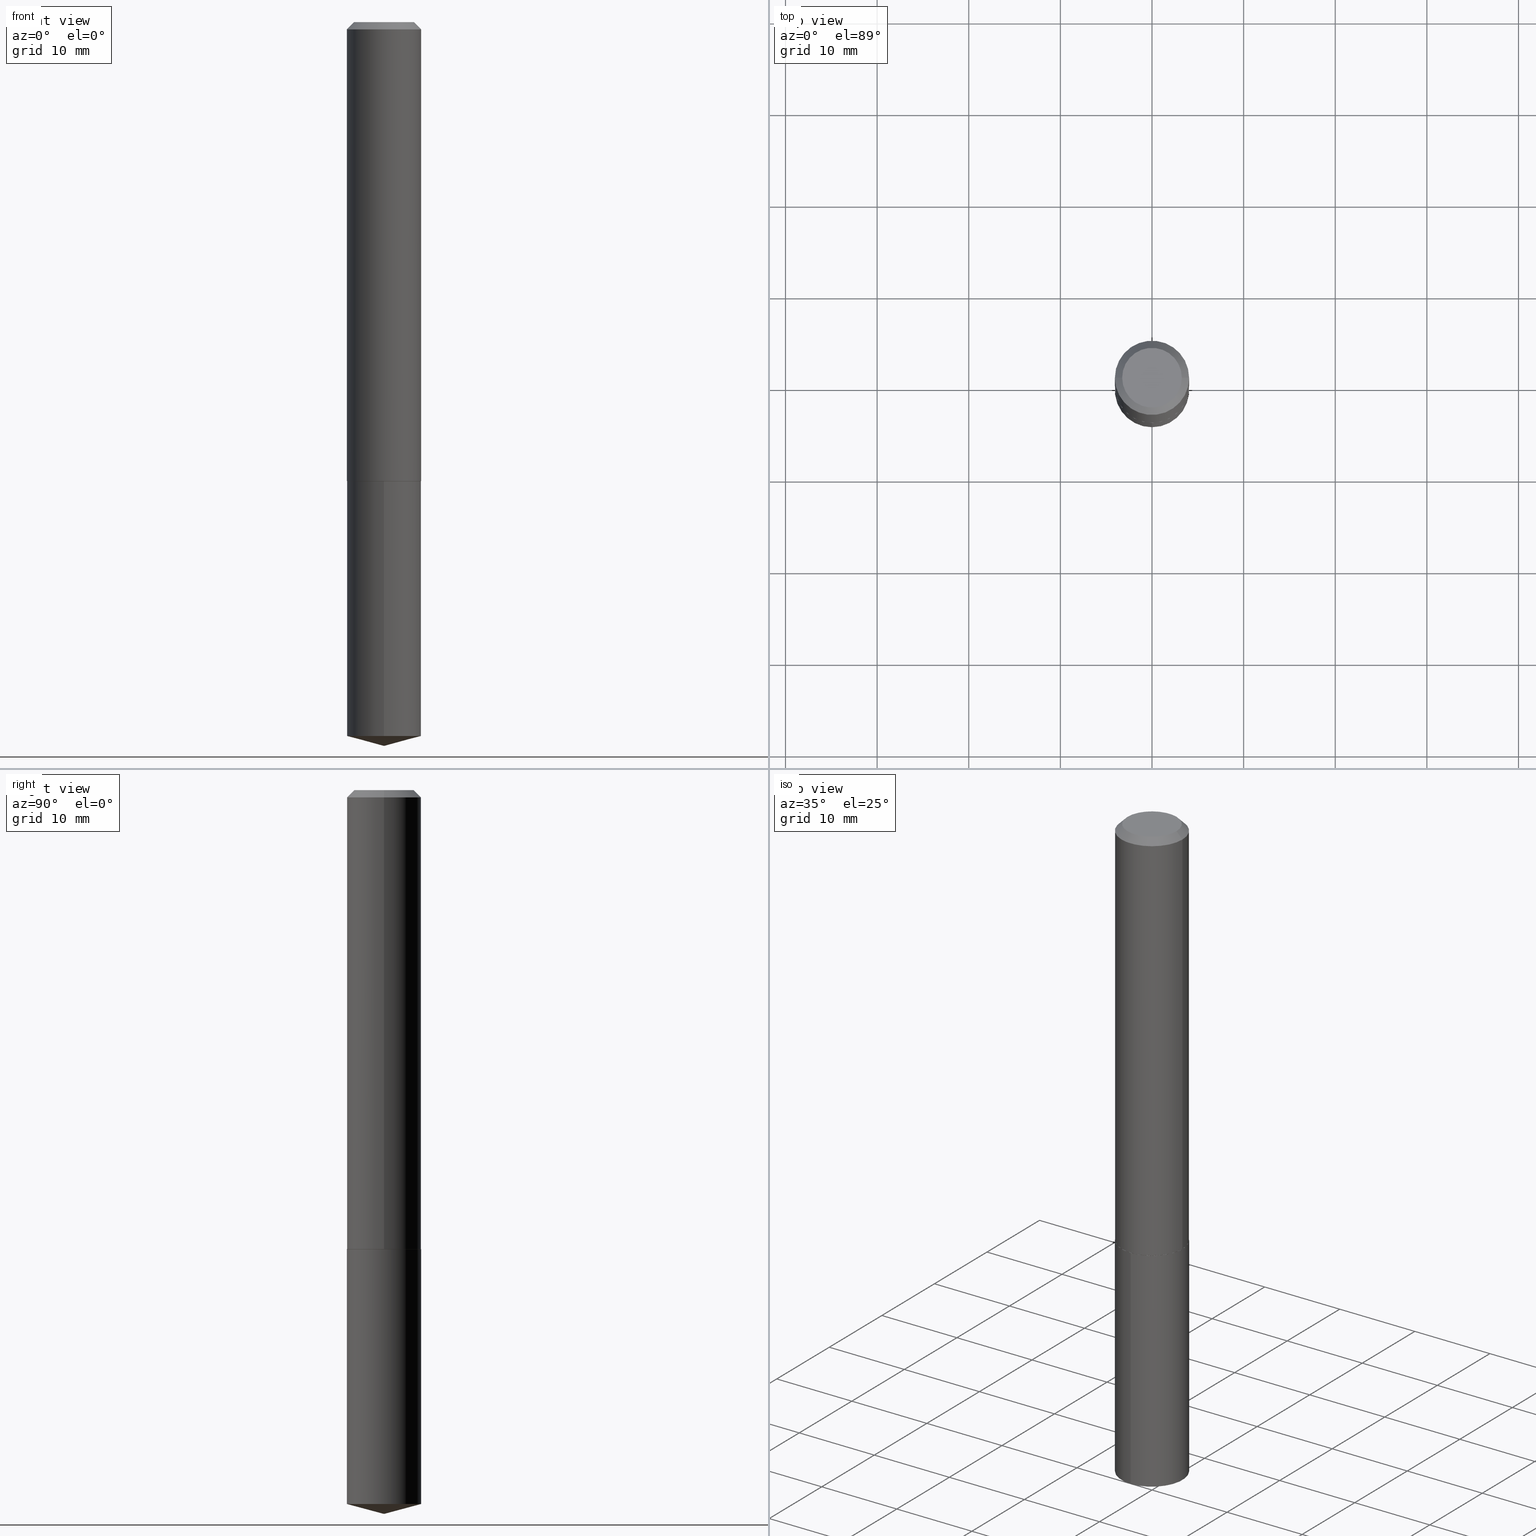
[diagram: canonical four-view strip — front | top / right | iso, engineering-drawing reading convention]
A machine part, canonical four-view strip (front | top / right | iso — engineering-drawing reading convention). The complete STEP part file that produces these views, byte-faithful:
ISO-10303-21;
HEADER;
FILE_DESCRIPTION (( 'STEP AP203' ),
    '1' );
FILE_NAME ('69016.STEP',
    '2024-04-23T14:21:04',
    ( '' ),
    ( '' ),
    'SwSTEP 2.0',
    'SolidWorks 2023',
    '' );
FILE_SCHEMA (( 'CONFIG_CONTROL_DESIGN' ));
ENDSEC;

DATA;
#1 = CYLINDRICAL_SURFACE ( 'NONE', #389, 0.1594500000000000361 ) ;
#2 = DIRECTION ( 'NONE',  ( 0.000000000000000000, 0.000000000000000000, 1.000000000000000000 ) ) ;
#3 = CC_DESIGN_PERSON_AND_ORGANIZATION_ASSIGNMENT ( #263, #243, ( #59 ) ) ;
#4 = CARTESIAN_POINT ( 'NONE',  ( -0.1589500000000003688, -5.754540887069427157E-15, -1.972399999999999931 ) ) ;
#5 = CC_DESIGN_PERSON_AND_ORGANIZATION_ASSIGNMENT ( #360, #209, ( #364 ) ) ;
#6 = DIRECTION ( 'NONE',  ( -2.445414738655623976E-29, 3.491558766622740629E-15, 1.000000000000000000 ) ) ;
#7 = CC_DESIGN_SECURITY_CLASSIFICATION ( #226, ( #364 ) ) ;
#8 = CONICAL_SURFACE ( 'NONE', #246, 0.1594500000000000361, 0.7853981633974450594 ) ;
#9 = DIRECTION ( 'NONE',  ( 2.445468806185136597E-29, -3.491481338843145583E-15, -1.000000000000000000 ) ) ;
#10 = EDGE_CURVE ( 'NONE', #47, #109, #70, .T. ) ;
#11 = CARTESIAN_POINT ( 'NONE',  ( -0.1282000000000000084, 9.497702111988029376E-16, 2.388061258272874228E-19 ) ) ;
#12 = EDGE_CURVE ( 'NONE', #297, #117, #171, .T. ) ;
#13 = DIRECTION ( 'NONE',  ( -2.445414738655623695E-29, 3.491558766622740629E-15, 1.000000000000000000 ) ) ;
#14 = APPROVAL ( #15, 'UNSPECIFIED' ) ;
#15 = APPROVAL_STATUS ( 'not_yet_approved' ) ;
#16 = EDGE_CURVE ( 'NONE', #23, #26, #50, .T. ) ;
#17 = AXIS2_PLACEMENT_3D ( 'NONE', #375, #234, #79 ) ;
#18 = LOCAL_TIME ( 10, 21, 4.000000000000000000, #340 ) ;
#19 = DIRECTION ( 'NONE',  ( -2.445468806185136597E-29, 3.491481338843145583E-15, 1.000000000000000000 ) ) ;
#20 = FACE_OUTER_BOUND ( 'NONE', #264, .T. ) ;
#21 = EDGE_CURVE ( 'NONE', #232, #148, #194, .T. ) ;
#22 = DIRECTION ( 'NONE',  ( -6.982962677686265133E-15, -1.000000000000000000, 3.426588891394496771E-15 ) ) ;
#23 = VERTEX_POINT ( 'NONE', #305 ) ;
#24 = CARTESIAN_POINT ( 'NONE',  ( 4.822219938916470979E-29, -6.884852052064798720E-15, -1.971899999999999986 ) ) ;
#25 = EDGE_CURVE ( 'NONE', #80, #200, #130, .T. ) ;
#26 = VERTEX_POINT ( 'NONE', #4 ) ;
#27 = ORIENTED_EDGE ( 'NONE', *, *, #91, .T. ) ;
#28 = PRODUCT_DEFINITION ( 'UNKNOWN', '', #364, #193 ) ;
#29 =( LENGTH_UNIT ( ) NAMED_UNIT ( * ) SI_UNIT ( $, .METRE. ) );
#30 = ORIENTED_EDGE ( 'NONE', *, *, #218, .T. ) ;
#31 = ORIENTED_EDGE ( 'NONE', *, *, #296, .T. ) ;
#32 = DATE_AND_TIME ( #150, #129 ) ;
#33 = DIRECTION ( 'NONE',  ( -6.982962677686265133E-15, -1.000000000000000000, 3.426588891394496771E-15 ) ) ;
#34 = FACE_OUTER_BOUND ( 'NONE', #121, .T. ) ;
#35 = DIRECTION ( 'NONE',  ( -0.7071067811865474617, 7.493145998870352582E-15, 0.7071067811865474617 ) ) ;
#36 = CC_DESIGN_APPROVAL ( #14, ( #226 ) ) ;
#37 = AXIS2_PLACEMENT_3D ( 'NONE', #154, #271, #95 ) ;
#38 = CARTESIAN_POINT ( 'NONE',  ( -0.1594500000000002582, -5.751891659895316745E-15, -1.971899999999999986 ) ) ;
#39 = DIRECTION ( 'NONE',  ( -2.445468806185136597E-29, 3.491481338843145583E-15, 1.000000000000000000 ) ) ;
#40 = PERSON_AND_ORGANIZATION ( #65, #111 ) ;
#41 = FACE_OUTER_BOUND ( 'NONE', #82, .T. ) ;
#42 = CC_DESIGN_APPROVAL ( #383, ( #28 ) ) ;
#43 = PLANE ( 'NONE',  #17 ) ;
#44 = ORIENTED_EDGE ( 'NONE', *, *, #107, .T. ) ;
#45 = AXIS2_PLACEMENT_3D ( 'NONE', #228, #101, #46 ) ;
#46 = DIRECTION ( 'NONE',  ( -6.982962677686266711E-15, -1.000000000000000000, 3.510303681827621500E-15 ) ) ;
#47 = VERTEX_POINT ( 'NONE', #11 ) ;
#48 = CYLINDRICAL_SURFACE ( 'NONE', #98, 0.1594500000000000361 ) ;
#49 = EDGE_LOOP ( 'NONE', ( #384, #238 ) ) ;
#50 = CIRCLE ( 'NONE', #276, 0.1589500000000003688 ) ;
#51 = AXIS2_PLACEMENT_3D ( 'NONE', #380, #164, #261 ) ;
#52 = VERTEX_POINT ( 'NONE', #38 ) ;
#53 = APPROVAL_STATUS ( 'not_yet_approved' ) ;
#54 = ORIENTED_EDGE ( 'NONE', *, *, #100, .T. ) ;
#55 = ORIENTED_EDGE ( 'NONE', *, *, #227, .F. ) ;
#56 = ADVANCED_FACE ( 'NONE', ( #64 ), #1, .T. ) ;
#57 = COORDINATED_UNIVERSAL_TIME_OFFSET ( 5, 0, .BEHIND. ) ;
#58 = CARTESIAN_POINT ( 'NONE',  ( 0.1594500000000001194, -1.113433398957076194E-15, 7.775063869006624280E-30 ) ) ;
#59 = PRODUCT ( '69016', '69016', '', ( #265 ) ) ;
#60 = FACE_OUTER_BOUND ( 'NONE', #326, .T. ) ;
#61 = LINE ( 'NONE', #89, #134 ) ;
#62 = CARTESIAN_POINT ( 'NONE',  ( -5.839929314523303030E-48, 8.337871319499265500E-34, 2.388061258337386622E-19 ) ) ;
#63 = AXIS2_PLACEMENT_3D ( 'NONE', #110, #280, #201 ) ;
#64 = FACE_OUTER_BOUND ( 'NONE', #84, .T. ) ;
#65 = PERSON ( 'UNSPECIFIED', 'UNSPECIFIED', 'UNSPECIFIED', ('UNSPECIFIED'), ('UNSPECIFIED'), ('UNSPECIFIED') ) ;
#66 = FACE_OUTER_BOUND ( 'NONE', #175, .T. ) ;
#67 = EDGE_CURVE ( 'NONE', #148, #117, #215, .T. ) ;
#68 = APPLICATION_CONTEXT ( 'configuration controlled 3d designs of mechanical parts and assemblies' ) ;
#69 = PLANE ( 'NONE',  #63 ) ;
#70 = CIRCLE ( 'NONE', #90, 0.1282000000000000084 ) ;
#71 = AXIS2_PLACEMENT_3D ( 'NONE', #140, #167, #382 ) ;
#72 = EDGE_LOOP ( 'NONE', ( #266, #173, #236 ) ) ;
#73 = EDGE_CURVE ( 'NONE', #26, #52, #248, .T. ) ;
#74 = AXIS2_PLACEMENT_3D ( 'NONE', #242, #132, #96 ) ;
#75 = DIRECTION ( 'NONE',  ( -2.445414738655623695E-29, 3.491558766622740629E-15, 1.000000000000000000 ) ) ;
#76 = CONICAL_SURFACE ( 'NONE', #269, 0.1594500000000002582, 0.7853981633974482790 ) ;
#77 = ORIENTED_EDGE ( 'NONE', *, *, #367, .F. ) ;
#78 = EDGE_CURVE ( 'NONE', #109, #47, #267, .T. ) ;
#79 = DIRECTION ( 'NONE',  ( 1.000000000000000000, -6.982962677686265922E-15, 4.876176775795935793E-29 ) ) ;
#80 = VERTEX_POINT ( 'NONE', #368 ) ;
#81 = CARTESIAN_POINT ( 'NONE',  ( 4.823442673319563780E-29, -6.886597792734220224E-15, -1.972399999999999931 ) ) ;
#82 = EDGE_LOOP ( 'NONE', ( #290, #229 ) ) ;
#83 = CIRCLE ( 'NONE', #51, 0.1594500000000000361 ) ;
#84 = EDGE_LOOP ( 'NONE', ( #112, #355, #138, #85 ) ) ;
#85 = ORIENTED_EDGE ( 'NONE', *, *, #218, .F. ) ;
#86 = PERSON_AND_ORGANIZATION_ROLE ( 'creator' ) ;
#87 = DIRECTION ( 'NONE',  ( 1.000000000000000000, -6.982962677686267499E-15, 4.876176775795935232E-29 ) ) ;
#88 = LENGTH_MEASURE_WITH_UNIT ( LENGTH_MEASURE( 0.02539999999999999897 ), #29 );
#89 = CARTESIAN_POINT ( 'NONE',  ( -0.1594500000000000361, 1.004324607118226502E-15, -0.03125000000000021511 ) ) ;
#90 = AXIS2_PLACEMENT_3D ( 'NONE', #324, #39, #311 ) ;
#91 = EDGE_CURVE ( 'NONE', #80, #52, #97, .T. ) ;
#92 =( NAMED_UNIT ( * ) PLANE_ANGLE_UNIT ( ) SI_UNIT ( $, .RADIAN. ) );
#93 = CARTESIAN_POINT ( 'NONE',  ( 0.000000000000000000, 0.000000000000000000, 0.000000000000000000 ) ) ;
#94 = PERSON_AND_ORGANIZATION_ROLE ( 'classification_officer' ) ;
#95 = DIRECTION ( 'NONE',  ( -6.982962677686265133E-15, -1.000000000000000000, 3.426588891394496771E-15 ) ) ;
#96 = DIRECTION ( 'NONE',  ( -6.982962677686265133E-15, -1.000000000000000000, 3.426588891394496771E-15 ) ) ;
#97 = CIRCLE ( 'NONE', #318, 0.1594500000000002582 ) ;
#98 = AXIS2_PLACEMENT_3D ( 'NONE', #160, #13, #320 ) ;
#99 = APPROVAL_DATE_TIME ( #163, #14 ) ;
#100 = EDGE_CURVE ( 'NONE', #148, #232, #371, .T. ) ;
#101 = DIRECTION ( 'NONE',  ( -2.445414738655623695E-29, 3.491558766622740629E-15, 1.000000000000000000 ) ) ;
#102 = DATE_TIME_ROLE ( 'classification_date' ) ;
#103 = CARTESIAN_POINT ( 'NONE',  ( 1.132960392169554156E-15, 0.1594499999999892392, -3.067475501266858195 ) ) ;
#104 = EDGE_CURVE ( 'NONE', #23, #80, #187, .T. ) ;
#105 = CIRCLE ( 'NONE', #166, 0.1594500000000000361 ) ;
#106 = ORIENTED_EDGE ( 'NONE', *, *, #233, .T. ) ;
#107 = EDGE_CURVE ( 'NONE', #47, #328, #61, .T. ) ;
#108 = CARTESIAN_POINT ( 'NONE',  ( 7.605944076020007762E-29, -1.085914063884510198E-14, -3.110199999999999854 ) ) ;
#109 = VERTEX_POINT ( 'NONE', #185 ) ;
#110 = CARTESIAN_POINT ( 'NONE',  ( -2.919964657261651515E-48, 4.168935659749632750E-34, 1.194030629168693311E-19 ) ) ;
#111 = ORGANIZATION ( 'UNSPECIFIED', 'UNSPECIFIED', '' ) ;
#112 = ORIENTED_EDGE ( 'NONE', *, *, #21, .T. ) ;
#113 = LINE ( 'NONE', #352, #120 ) ;
#114 = ORIENTED_EDGE ( 'NONE', *, *, #25, .T. ) ;
#115 = ADVANCED_FACE ( 'NONE', ( #34 ), #217, .T. ) ;
#116 = APPROVAL_DATE_TIME ( #385, #383 ) ;
#117 = VERTEX_POINT ( 'NONE', #336 ) ;
#118 = DIRECTION ( 'NONE',  ( -6.745023994389839133E-15, -0.9659258262890676461, 0.2588190451025227934 ) ) ;
#119 = VECTOR ( 'NONE', #35, 39.37007874015748854 ) ;
#120 = VECTOR ( 'NONE', #133, 39.37007874015748143 ) ;
#121 = EDGE_LOOP ( 'NONE', ( #27, #299, #198, #152 ) ) ;
#122 = CARTESIAN_POINT ( 'NONE',  ( -0.1594500000000002582, -5.751891659895316745E-15, -1.971899999999999986 ) ) ;
#123 = APPLICATION_PROTOCOL_DEFINITION ( 'international standard', 'config_control_design', 1994, #68 ) ;
#124 = ADVANCED_FACE ( 'NONE', ( #60 ), #204, .T. ) ;
#125 = DIRECTION ( 'NONE',  ( -2.445414738655623695E-29, 3.491558766622740629E-15, 1.000000000000000000 ) ) ;
#126 = APPROVAL_ROLE ( '' ) ;
#127 = LOCAL_TIME ( 10, 21, 4.000000000000000000, #131 ) ;
#128 = CARTESIAN_POINT ( 'NONE',  ( 0.000000000000000000, 0.000000000000000000, 0.000000000000000000 ) ) ;
#129 = LOCAL_TIME ( 10, 21, 4.000000000000000000, #177 ) ;
#130 = LINE ( 'NONE', #58, #327 ) ;
#131 = COORDINATED_UNIVERSAL_TIME_OFFSET ( 5, 0, .BEHIND. ) ;
#132 = DIRECTION ( 'NONE',  ( -2.445414738655623695E-29, 3.491558766622740629E-15, 1.000000000000000000 ) ) ;
#133 = DIRECTION ( 'NONE',  ( 0.7071067811865452413, -7.319954787623248157E-15, -0.7071067811865497932 ) ) ;
#134 = VECTOR ( 'NONE', #361, 39.37007874015748143 ) ;
#135 = CONICAL_SURFACE ( 'NONE', #191, 146.9311341562558084, 1.308996938995748538 ) ;
#136 = DIRECTION ( 'NONE',  ( 6.982962677686265922E-15, 1.000000000000000000, -3.491558766622740629E-15 ) ) ;
#137 = CARTESIAN_POINT ( 'NONE',  ( -0.1594500000000000361, -2.364020029782342724E-15, -0.03125000000000021511 ) ) ;
#138 = ORIENTED_EDGE ( 'NONE', *, *, #12, .F. ) ;
#139 = ADVANCED_FACE ( 'NONE', ( #184 ), #366, .T. ) ;
#140 = CARTESIAN_POINT ( 'NONE',  ( 7.642090019328603538E-31, -1.091087918388490390E-16, -0.03125000000000021511 ) ) ;
#141 = ORIENTED_EDGE ( 'NONE', *, *, #91, .F. ) ;
#142 = CARTESIAN_POINT ( 'NONE',  ( 0.1594500000000000361, -1.222542190795924506E-15, -0.03125000000000021511 ) ) ;
#143 = AXIS2_PLACEMENT_3D ( 'NONE', #157, #339, #247 ) ;
#144 = ADVANCED_FACE ( 'NONE', ( #278 ), #8, .T. ) ;
#145 = ORIENTED_EDGE ( 'NONE', *, *, #309, .T. ) ;
#146 = EDGE_LOOP ( 'NONE', ( #330, #54, #30, #386 ) ) ;
#147 = CARTESIAN_POINT ( 'NONE',  ( 0.000000000000000000, 0.000000000000000000, 0.000000000000000000 ) ) ;
#148 = VERTEX_POINT ( 'NONE', #103 ) ;
#149 = EDGE_CURVE ( 'NONE', #52, #80, #286, .T. ) ;
#150 = CALENDAR_DATE ( 2024, 23, 4 ) ;
#151 = AXIS2_PLACEMENT_3D ( 'NONE', #190, #19, #254 ) ;
#152 = ORIENTED_EDGE ( 'NONE', *, *, #25, .F. ) ;
#153 = CARTESIAN_POINT ( 'NONE',  ( -8.867033525025160767E-28, 1.266036502104268642E-13, 36.25987874015748247 ) ) ;
#154 = CARTESIAN_POINT ( 'NONE',  ( 7.501356444058232393E-29, -1.071011825929630935E-14, -3.067475501266857751 ) ) ;
#155 = DIRECTION ( 'NONE',  ( -6.982962677686266711E-15, -1.000000000000000000, 3.510303681827621500E-15 ) ) ;
#156 = CARTESIAN_POINT ( 'NONE',  ( 4.823442673319563780E-29, -6.886597792734220224E-15, -1.972399999999999931 ) ) ;
#157 = CARTESIAN_POINT ( 'NONE',  ( 7.642090019328603538E-31, -1.091087918388490390E-16, -0.03125000000000021511 ) ) ;
#158 = DIRECTION ( 'NONE',  ( -2.445468806185136597E-29, 3.491481338843145583E-15, 1.000000000000000000 ) ) ;
#159 = CALENDAR_DATE ( 2024, 23, 4 ) ;
#160 = CARTESIAN_POINT ( 'NONE',  ( 4.823442673319563780E-29, -6.886597792734220224E-15, -1.972399999999999931 ) ) ;
#161 = CALENDAR_DATE ( 2024, 23, 4 ) ;
#162 = DIRECTION ( 'NONE',  ( -2.445468806185136597E-29, 3.491481338843145583E-15, 1.000000000000000000 ) ) ;
#163 = DATE_AND_TIME ( #161, #127 ) ;
#164 = DIRECTION ( 'NONE',  ( -2.445468806185136597E-29, 3.491481338843145583E-15, 1.000000000000000000 ) ) ;
#165 = CLOSED_SHELL ( 'NONE', ( #56, #331, #188, #176, #277 ) ) ;
#166 = AXIS2_PLACEMENT_3D ( 'NONE', #81, #75, #22 ) ;
#167 = DIRECTION ( 'NONE',  ( -2.445468806185136597E-29, 3.491481338843145583E-15, 1.000000000000000000 ) ) ;
#168 = ORIENTED_EDGE ( 'NONE', *, *, #149, .F. ) ;
#169 = FACE_OUTER_BOUND ( 'NONE', #49, .T. ) ;
#170 = ORIENTED_EDGE ( 'NONE', *, *, #287, .T. ) ;
#171 = CIRCLE ( 'NONE', #225, 0.1594500000000000361 ) ;
#172 = LINE ( 'NONE', #329, #230 ) ;
#173 = ORIENTED_EDGE ( 'NONE', *, *, #227, .T. ) ;
#174 = APPROVAL_ROLE ( '' ) ;
#175 = EDGE_LOOP ( 'NONE', ( #357, #379, #359, #168 ) ) ;
#176 = ADVANCED_FACE ( 'NONE', ( #378 ), #48, .T. ) ;
#177 = COORDINATED_UNIVERSAL_TIME_OFFSET ( 5, 0, .BEHIND. ) ;
#178 = EDGE_LOOP ( 'NONE', ( #77, #205, #114, #301 ) ) ;
#179 = PERSON_AND_ORGANIZATION ( #65, #111 ) ;
#180 = VECTOR ( 'NONE', #363, 39.37007874015748854 ) ;
#181 = CONICAL_SURFACE ( 'NONE', #45, 146.9311341562558084, 1.308996938995748538 ) ;
#182 = CARTESIAN_POINT ( 'NONE',  ( 4.823442673319563780E-29, -6.886597792734220224E-15, -1.972399999999999931 ) ) ;
#183 = DIRECTION ( 'NONE',  ( -2.445414738655623695E-29, 3.491558766622740629E-15, 1.000000000000000000 ) ) ;
#184 = FACE_OUTER_BOUND ( 'NONE', #178, .T. ) ;
#185 = CARTESIAN_POINT ( 'NONE',  ( 0.1282000000000000084, -1.041265520448915177E-15, 2.388061258405092689E-19 ) ) ;
#186 = CARTESIAN_POINT ( 'NONE',  ( 7.642090019328603538E-31, -1.091087918388490390E-16, -0.03125000000000021511 ) ) ;
#187 = LINE ( 'NONE', #244, #180 ) ;
#188 = ADVANCED_FACE ( 'NONE', ( #20 ), #181, .T. ) ;
#189 = DIRECTION ( 'NONE',  ( 1.000000000000000000, -6.982962677686267499E-15, 0.000000000000000000 ) ) ;
#190 = CARTESIAN_POINT ( 'NONE',  ( 4.822219938916470979E-29, -6.884852052064798720E-15, -1.971899999999999986 ) ) ;
#191 = AXIS2_PLACEMENT_3D ( 'NONE', #153, #183, #155 ) ;
#192 = EDGE_LOOP ( 'NONE', ( #208, #381, #141, #292 ) ) ;
#193 = DESIGN_CONTEXT ( 'detailed design', #68, 'design' ) ;
#194 = CIRCLE ( 'NONE', #37, 0.1594500000000000361 ) ;
#195 = VECTOR ( 'NONE', #118, 39.37007874015748854 ) ;
#196 = AXIS2_PLACEMENT_3D ( 'NONE', #128, #213, #87 ) ;
#197 = DIRECTION ( 'NONE',  ( -2.445468806185136597E-29, 3.491481338843145583E-15, 1.000000000000000000 ) ) ;
#198 = ORIENTED_EDGE ( 'NONE', *, *, #296, .F. ) ;
#199 = LINE ( 'NONE', #354, #284 ) ;
#200 = VERTEX_POINT ( 'NONE', #142 ) ;
#201 = DIRECTION ( 'NONE',  ( -1.000000000000000000, 6.982962677686265922E-15, -4.876176775795935793E-29 ) ) ;
#202 = VERTEX_POINT ( 'NONE', #312 ) ;
#203 = PERSON_AND_ORGANIZATION ( #65, #111 ) ;
#204 = CONICAL_SURFACE ( 'NONE', #143, 0.1594500000000000361, 0.7853981633974450594 ) ;
#205 = ORIENTED_EDGE ( 'NONE', *, *, #149, .T. ) ;
#206 = DIRECTION ( 'NONE',  ( 1.000000000000000000, 0.000000000000000000, 0.000000000000000000 ) ) ;
#207 = ADVANCED_FACE ( 'NONE', ( #169 ), #43, .F. ) ;
#208 = ORIENTED_EDGE ( 'NONE', *, *, #16, .T. ) ;
#209 = PERSON_AND_ORGANIZATION_ROLE ( 'creator' ) ;
#210 = DIRECTION ( 'NONE',  ( -6.982962677686265133E-15, -1.000000000000000000, 3.426588891394496771E-15 ) ) ;
#211 = COORDINATED_UNIVERSAL_TIME_OFFSET ( 5, 0, .BEHIND. ) ;
#212 = APPROVAL_PERSON_ORGANIZATION ( #298, #383, #126 ) ;
#213 = DIRECTION ( 'NONE',  ( -2.445468806185136597E-29, 3.491481338843145583E-15, 1.000000000000000000 ) ) ;
#214 = CARTESIAN_POINT ( 'NONE',  ( 7.605728920166720799E-29, -1.085944607595005053E-14, -3.110199999999999854 ) ) ;
#215 = LINE ( 'NONE', #370, #220 ) ;
#216 = MANIFOLD_SOLID_BREP ( 'Body-Move/Copy2[1]', #165 ) ;
#217 = CYLINDRICAL_SURFACE ( 'NONE', #196, 0.1594500000000001194 ) ;
#218 = EDGE_CURVE ( 'NONE', #232, #297, #199, .T. ) ;
#219 = DIRECTION ( 'NONE',  ( -2.445468806185136597E-29, 3.491481338843145583E-15, 1.000000000000000000 ) ) ;
#220 = VECTOR ( 'NONE', #6, 39.37007874015748143 ) ;
#221 = APPROVAL ( #53, 'UNSPECIFIED' ) ;
#222 = FACE_OUTER_BOUND ( 'NONE', #192, .T. ) ;
#223 = MANIFOLD_SOLID_BREP ( 'Body-Move/Copy2[2]', #251 ) ;
#224 = CARTESIAN_POINT ( 'NONE',  ( 4.822219938916470979E-29, -6.884852052064798720E-15, -1.971899999999999986 ) ) ;
#225 = AXIS2_PLACEMENT_3D ( 'NONE', #156, #274, #33 ) ;
#226 = SECURITY_CLASSIFICATION ( '', '', #362 ) ;
#227 = EDGE_CURVE ( 'NONE', #202, #148, #231, .T. ) ;
#228 = CARTESIAN_POINT ( 'NONE',  ( -8.867033525025160767E-28, 1.266036502104268642E-13, 36.25987874015748247 ) ) ;
#229 = ORIENTED_EDGE ( 'NONE', *, *, #78, .T. ) ;
#230 = VECTOR ( 'NONE', #365, 39.37007874015748143 ) ;
#231 = LINE ( 'NONE', #108, #255 ) ;
#232 = VERTEX_POINT ( 'NONE', #289 ) ;
#233 = EDGE_CURVE ( 'NONE', #328, #200, #83, .T. ) ;
#234 = DIRECTION ( 'NONE',  ( -2.438088387897960049E-29, 3.491481338843145188E-15, 1.000000000000000000 ) ) ;
#235 = CC_DESIGN_DATE_AND_TIME_ASSIGNMENT ( #356, #239, ( #28 ) ) ;
#236 = ORIENTED_EDGE ( 'NONE', *, *, #21, .F. ) ;
#237 = CALENDAR_DATE ( 2024, 23, 4 ) ;
#238 = ORIENTED_EDGE ( 'NONE', *, *, #315, .F. ) ;
#239 = DATE_TIME_ROLE ( 'creation_date' ) ;
#240 = AXIS2_PLACEMENT_3D ( 'NONE', #93, #310, #307 ) ;
#241 = ORIENTED_EDGE ( 'NONE', *, *, #342, .T. ) ;
#242 = CARTESIAN_POINT ( 'NONE',  ( 7.501356444058232393E-29, -1.071011825929630935E-14, -3.067475501266857751 ) ) ;
#243 = PERSON_AND_ORGANIZATION_ROLE ( 'design_owner' ) ;
#244 = CARTESIAN_POINT ( 'NONE',  ( 0.1594500000000002582, -7.998285451021876295E-15, -1.971899999999999986 ) ) ;
#245 = CALENDAR_DATE ( 2024, 23, 4 ) ;
#246 = AXIS2_PLACEMENT_3D ( 'NONE', #186, #9, #259 ) ;
#247 = DIRECTION ( 'NONE',  ( -1.000000000000000000, 6.982962677686265922E-15, 0.000000000000000000 ) ) ;
#248 = LINE ( 'NONE', #122, #119 ) ;
#249 = CARTESIAN_POINT ( 'NONE',  ( 4.823442673319563780E-29, -6.886597792734220224E-15, -1.972399999999999931 ) ) ;
#250 = ADVANCED_FACE ( 'NONE', ( #41 ), #69, .F. ) ;
#251 = CLOSED_SHELL ( 'NONE', ( #124, #115, #258, #207, #288, #139, #144, #250 ) ) ;
#252 = CARTESIAN_POINT ( 'NONE',  ( 4.823442673319563780E-29, -6.886597792734220224E-15, -1.972399999999999931 ) ) ;
#253 =( GEOMETRIC_REPRESENTATION_CONTEXT ( 3 ) GLOBAL_UNCERTAINTY_ASSIGNED_CONTEXT ( ( #377 ) ) GLOBAL_UNIT_ASSIGNED_CONTEXT ( ( #332, #92, #295 ) ) REPRESENTATION_CONTEXT ( 'NONE', 'WORKASPACE' ) );
#254 = DIRECTION ( 'NONE',  ( 1.000000000000000000, -6.982962677686267499E-15, 0.000000000000000000 ) ) ;
#255 = VECTOR ( 'NONE', #346, 39.37007874015748143 ) ;
#256 = APPROVAL_PERSON_ORGANIZATION ( #281, #14, #308 ) ;
#257 = FACE_OUTER_BOUND ( 'NONE', #72, .T. ) ;
#258 = ADVANCED_FACE ( 'NONE', ( #222 ), #76, .T. ) ;
#259 = DIRECTION ( 'NONE',  ( -1.000000000000000000, 6.982962677686265922E-15, 0.000000000000000000 ) ) ;
#260 = ORIENTED_EDGE ( 'NONE', *, *, #107, .F. ) ;
#261 = DIRECTION ( 'NONE',  ( 1.000000000000000000, -6.982962677686265922E-15, 0.000000000000000000 ) ) ;
#262 = ORIENTED_EDGE ( 'NONE', *, *, #10, .F. ) ;
#263 = PERSON_AND_ORGANIZATION ( #65, #111 ) ;
#264 = EDGE_LOOP ( 'NONE', ( #55, #241, #351 ) ) ;
#265 = MECHANICAL_CONTEXT ( 'NONE', #282, 'mechanical' ) ;
#266 = ORIENTED_EDGE ( 'NONE', *, *, #342, .F. ) ;
#267 = CIRCLE ( 'NONE', #350, 0.1282000000000000084 ) ;
#268 = APPROVAL_DATE_TIME ( #32, #221 ) ;
#269 = AXIS2_PLACEMENT_3D ( 'NONE', #224, #162, #283 ) ;
#270 = DIRECTION ( 'NONE',  ( 1.000000000000000000, -6.982962677686265922E-15, 0.000000000000000000 ) ) ;
#271 = DIRECTION ( 'NONE',  ( -2.445414738655623695E-29, 3.491558766622740629E-15, 1.000000000000000000 ) ) ;
#272 = PRODUCT_RELATED_PRODUCT_CATEGORY ( 'detail', '', ( #59 ) ) ;
#273 = APPLICATION_PROTOCOL_DEFINITION ( 'international standard', 'config_control_design', 1994, #282 ) ;
#274 = DIRECTION ( 'NONE',  ( -2.445414738655623695E-29, 3.491558766622740629E-15, 1.000000000000000000 ) ) ;
#275 = DATE_AND_TIME ( #159, #18 ) ;
#276 = AXIS2_PLACEMENT_3D ( 'NONE', #249, #219, #270 ) ;
#277 = ADVANCED_FACE ( 'NONE', ( #291 ), #313, .F. ) ;
#278 = FACE_OUTER_BOUND ( 'NONE', #316, .T. ) ;
#279 = DIRECTION ( 'NONE',  ( 1.000000000000000000, -6.982962677686267499E-15, 4.876166643192836620E-29 ) ) ;
#280 = DIRECTION ( 'NONE',  ( 2.438088387897960049E-29, -3.491481338843145188E-15, -1.000000000000000000 ) ) ;
#281 = PERSON_AND_ORGANIZATION ( #65, #111 ) ;
#282 = APPLICATION_CONTEXT ( 'configuration controlled 3d designs of mechanical parts and assemblies' ) ;
#283 = DIRECTION ( 'NONE',  ( 1.000000000000000000, -6.982962677686267499E-15, 0.000000000000000000 ) ) ;
#284 = VECTOR ( 'NONE', #322, 39.37007874015748143 ) ;
#285 = DIRECTION ( 'NONE',  ( 1.000000000000000000, -6.982962677686265922E-15, 0.000000000000000000 ) ) ;
#286 = CIRCLE ( 'NONE', #372, 0.1594500000000002582 ) ;
#287 = EDGE_CURVE ( 'NONE', #117, #297, #105, .T. ) ;
#288 = ADVANCED_FACE ( 'NONE', ( #66 ), #302, .T. ) ;
#289 = CARTESIAN_POINT ( 'NONE',  ( -1.113433398956999872E-15, -0.1594500000000106665, -3.067475501266857307 ) ) ;
#290 = ORIENTED_EDGE ( 'NONE', *, *, #10, .T. ) ;
#291 = FACE_OUTER_BOUND ( 'NONE', #353, .T. ) ;
#292 = ORIENTED_EDGE ( 'NONE', *, *, #104, .F. ) ;
#293 = DIMENSIONAL_EXPONENTS ( 1.000000000000000000, 0.000000000000000000, 0.000000000000000000, 0.000000000000000000, 0.000000000000000000, 0.000000000000000000, 0.000000000000000000 ) ;
#294 = APPROVAL_PERSON_ORGANIZATION ( #203, #221, #174 ) ;
#295 =( NAMED_UNIT ( * ) SI_UNIT ( $, .STERADIAN. ) SOLID_ANGLE_UNIT ( ) );
#296 = EDGE_CURVE ( 'NONE', #200, #328, #358, .T. ) ;
#297 = VERTEX_POINT ( 'NONE', #325 ) ;
#298 = PERSON_AND_ORGANIZATION ( #65, #111 ) ;
#299 = ORIENTED_EDGE ( 'NONE', *, *, #367, .T. ) ;
#300 = LINE ( 'NONE', #214, #195 ) ;
#301 = ORIENTED_EDGE ( 'NONE', *, *, #233, .F. ) ;
#302 = CONICAL_SURFACE ( 'NONE', #151, 0.1594500000000002582, 0.7853981633974482790 ) ;
#303 = PERSON_AND_ORGANIZATION_ROLE ( 'design_supplier' ) ;
#304 = CARTESIAN_POINT ( 'NONE',  ( 4.822219938916470979E-29, -6.884852052064798720E-15, -1.971899999999999986 ) ) ;
#305 = CARTESIAN_POINT ( 'NONE',  ( 0.1589500000000003688, -7.996539710352454003E-15, -1.972399999999999931 ) ) ;
#306 = SHAPE_DEFINITION_REPRESENTATION ( #345, #323 ) ;
#307 = DIRECTION ( 'NONE',  ( 1.000000000000000000, -6.982962677686267499E-15, 4.876176775795935232E-29 ) ) ;
#308 = APPROVAL_ROLE ( '' ) ;
#309 = EDGE_CURVE ( 'NONE', #109, #200, #113, .T. ) ;
#310 = DIRECTION ( 'NONE',  ( -2.445468806185136597E-29, 3.491481338843145583E-15, 1.000000000000000000 ) ) ;
#311 = DIRECTION ( 'NONE',  ( 1.000000000000000000, -6.982962677686267499E-15, 4.876166643192836620E-29 ) ) ;
#312 = CARTESIAN_POINT ( 'NONE',  ( 7.605728920166721920E-29, -1.085944607595004737E-14, -3.110199999999999854 ) ) ;
#313 = PLANE ( 'NONE',  #319 ) ;
#314 = LOCAL_TIME ( 10, 21, 4.000000000000000000, #57 ) ;
#315 = EDGE_CURVE ( 'NONE', #26, #23, #390, .T. ) ;
#316 = EDGE_LOOP ( 'NONE', ( #376, #262, #44, #106 ) ) ;
#317 = CC_DESIGN_PERSON_AND_ORGANIZATION_ASSIGNMENT ( #40, #94, ( #226 ) ) ;
#318 = AXIS2_PLACEMENT_3D ( 'NONE', #304, #337, #333 ) ;
#319 = AXIS2_PLACEMENT_3D ( 'NONE', #349, #344, #136 ) ;
#320 = DIRECTION ( 'NONE',  ( -6.982962677686265133E-15, -1.000000000000000000, 3.426588891394496771E-15 ) ) ;
#321 = ORIENTED_EDGE ( 'NONE', *, *, #78, .F. ) ;
#322 = DIRECTION ( 'NONE',  ( -2.445414738655623976E-29, 3.491558766622740629E-15, 1.000000000000000000 ) ) ;
#323 = ADVANCED_BREP_SHAPE_REPRESENTATION ( '69016', ( #216, #223, #341 ), #253 ) ;
#324 = CARTESIAN_POINT ( 'NONE',  ( -5.839929314523303030E-48, 8.337871319499265500E-34, 2.388061258337386622E-19 ) ) ;
#325 = CARTESIAN_POINT ( 'NONE',  ( -1.113433398957026890E-15, -0.1594500000000069195, -1.972399999999999487 ) ) ;
#326 = EDGE_LOOP ( 'NONE', ( #321, #145, #31, #260 ) ) ;
#327 = VECTOR ( 'NONE', #343, 39.37007874015748143 ) ;
#328 = VERTEX_POINT ( 'NONE', #137 ) ;
#329 = CARTESIAN_POINT ( 'NONE',  ( -0.1594500000000001194, 1.132960392169480595E-15, -7.843242001411453542E-30 ) ) ;
#330 = ORIENTED_EDGE ( 'NONE', *, *, #67, .F. ) ;
#331 = ADVANCED_FACE ( 'NONE', ( #257 ), #135, .T. ) ;
#332 =( CONVERSION_BASED_UNIT ( 'INCH', #88 ) LENGTH_UNIT ( ) NAMED_UNIT ( #293 ) );
#333 = DIRECTION ( 'NONE',  ( 1.000000000000000000, -6.982962677686267499E-15, 0.000000000000000000 ) ) ;
#334 = LOCAL_TIME ( 10, 21, 4.000000000000000000, #211 ) ;
#335 = PERSON_AND_ORGANIZATION ( #65, #111 ) ;
#336 = CARTESIAN_POINT ( 'NONE',  ( 1.132960392169554945E-15, 0.1594499999999931250, -1.972400000000000597 ) ) ;
#337 = DIRECTION ( 'NONE',  ( -2.445468806185136597E-29, 3.491481338843145583E-15, 1.000000000000000000 ) ) ;
#338 = CC_DESIGN_DATE_AND_TIME_ASSIGNMENT ( #275, #102, ( #226 ) ) ;
#339 = DIRECTION ( 'NONE',  ( 2.445468806185136597E-29, -3.491481338843145583E-15, -1.000000000000000000 ) ) ;
#340 = COORDINATED_UNIVERSAL_TIME_OFFSET ( 5, 0, .BEHIND. ) ;
#341 = AXIS2_PLACEMENT_3D ( 'NONE', #147, #2, #206 ) ;
#342 = EDGE_CURVE ( 'NONE', #202, #232, #300, .T. ) ;
#343 = DIRECTION ( 'NONE',  ( -2.445468806185136877E-29, 3.491481338843145188E-15, 1.000000000000000000 ) ) ;
#344 = DIRECTION ( 'NONE',  ( 2.445414738655623415E-29, -3.491558766622740629E-15, -1.000000000000000000 ) ) ;
#345 = PRODUCT_DEFINITION_SHAPE ( 'NONE', 'NONE',  #28 ) ;
#346 = DIRECTION ( 'NONE',  ( 6.863315791527694259E-15, 0.9659258262890694224, 0.2588190451025160765 ) ) ;
#347 = CC_DESIGN_PERSON_AND_ORGANIZATION_ASSIGNMENT ( #179, #303, ( #364 ) ) ;
#348 = CC_DESIGN_APPROVAL ( #221, ( #364 ) ) ;
#349 = CARTESIAN_POINT ( 'NONE',  ( 4.823442673319563780E-29, -6.886597792734220224E-15, -1.972399999999999931 ) ) ;
#350 = AXIS2_PLACEMENT_3D ( 'NONE', #62, #158, #279 ) ;
#351 = ORIENTED_EDGE ( 'NONE', *, *, #100, .F. ) ;
#352 = CARTESIAN_POINT ( 'NONE',  ( 0.1594500000000000361, -1.203015197583519908E-15, -0.03125000000000021511 ) ) ;
#353 = EDGE_LOOP ( 'NONE', ( #388, #170 ) ) ;
#354 = CARTESIAN_POINT ( 'NONE',  ( -1.113433398957026890E-15, -0.1594500000000069195, -1.972399999999999487 ) ) ;
#355 = ORIENTED_EDGE ( 'NONE', *, *, #67, .T. ) ;
#356 = DATE_AND_TIME ( #237, #314 ) ;
#357 = ORIENTED_EDGE ( 'NONE', *, *, #73, .F. ) ;
#358 = CIRCLE ( 'NONE', #71, 0.1594500000000000361 ) ;
#359 = ORIENTED_EDGE ( 'NONE', *, *, #104, .T. ) ;
#360 = PERSON_AND_ORGANIZATION ( #65, #111 ) ;
#361 = DIRECTION ( 'NONE',  ( -0.7071067811865452413, 2.468850131082233000E-15, -0.7071067811865497932 ) ) ;
#362 = SECURITY_CLASSIFICATION_LEVEL ( 'unclassified' ) ;
#363 = DIRECTION ( 'NONE',  ( 0.7071067811865474617, -2.468850131082256666E-15, 0.7071067811865474617 ) ) ;
#364 = PRODUCT_DEFINITION_FORMATION_WITH_SPECIFIED_SOURCE ( 'ANY', '', #59, .NOT_KNOWN. ) ;
#365 = DIRECTION ( 'NONE',  ( -2.445468806185136877E-29, 3.491481338843145188E-15, 1.000000000000000000 ) ) ;
#366 = CYLINDRICAL_SURFACE ( 'NONE', #240, 0.1594500000000001194 ) ;
#367 = EDGE_CURVE ( 'NONE', #52, #328, #172, .T. ) ;
#368 = CARTESIAN_POINT ( 'NONE',  ( 0.1594500000000002582, -7.998285451021876295E-15, -1.971899999999999986 ) ) ;
#369 = CC_DESIGN_PERSON_AND_ORGANIZATION_ASSIGNMENT ( #335, #86, ( #28 ) ) ;
#370 = CARTESIAN_POINT ( 'NONE',  ( 1.132960392169527927E-15, 0.1594499999999931250, -1.972400000000000597 ) ) ;
#371 = CIRCLE ( 'NONE', #74, 0.1594500000000000361 ) ;
#372 = AXIS2_PLACEMENT_3D ( 'NONE', #24, #197, #189 ) ;
#373 = AXIS2_PLACEMENT_3D ( 'NONE', #252, #374, #285 ) ;
#374 = DIRECTION ( 'NONE',  ( -2.445468806185136597E-29, 3.491481338843145583E-15, 1.000000000000000000 ) ) ;
#375 = CARTESIAN_POINT ( 'NONE',  ( 4.823442673319563780E-29, -6.886597792734220224E-15, -1.972399999999999931 ) ) ;
#376 = ORIENTED_EDGE ( 'NONE', *, *, #309, .F. ) ;
#377 = UNCERTAINTY_MEASURE_WITH_UNIT (LENGTH_MEASURE( 1.000000000000000082E-05 ), #332, 'distance_accuracy_value', 'NONE');
#378 = FACE_OUTER_BOUND ( 'NONE', #146, .T. ) ;
#379 = ORIENTED_EDGE ( 'NONE', *, *, #315, .T. ) ;
#380 = CARTESIAN_POINT ( 'NONE',  ( 7.642090019328603538E-31, -1.091087918388490390E-16, -0.03125000000000021511 ) ) ;
#381 = ORIENTED_EDGE ( 'NONE', *, *, #73, .T. ) ;
#382 = DIRECTION ( 'NONE',  ( 1.000000000000000000, -6.982962677686265922E-15, 0.000000000000000000 ) ) ;
#383 = APPROVAL ( #387, 'UNSPECIFIED' ) ;
#384 = ORIENTED_EDGE ( 'NONE', *, *, #16, .F. ) ;
#385 = DATE_AND_TIME ( #245, #334 ) ;
#386 = ORIENTED_EDGE ( 'NONE', *, *, #287, .F. ) ;
#387 = APPROVAL_STATUS ( 'not_yet_approved' ) ;
#388 = ORIENTED_EDGE ( 'NONE', *, *, #12, .T. ) ;
#389 = AXIS2_PLACEMENT_3D ( 'NONE', #182, #125, #210 ) ;
#390 = CIRCLE ( 'NONE', #373, 0.1589500000000003688 ) ;
ENDSEC;
END-ISO-10303-21;
